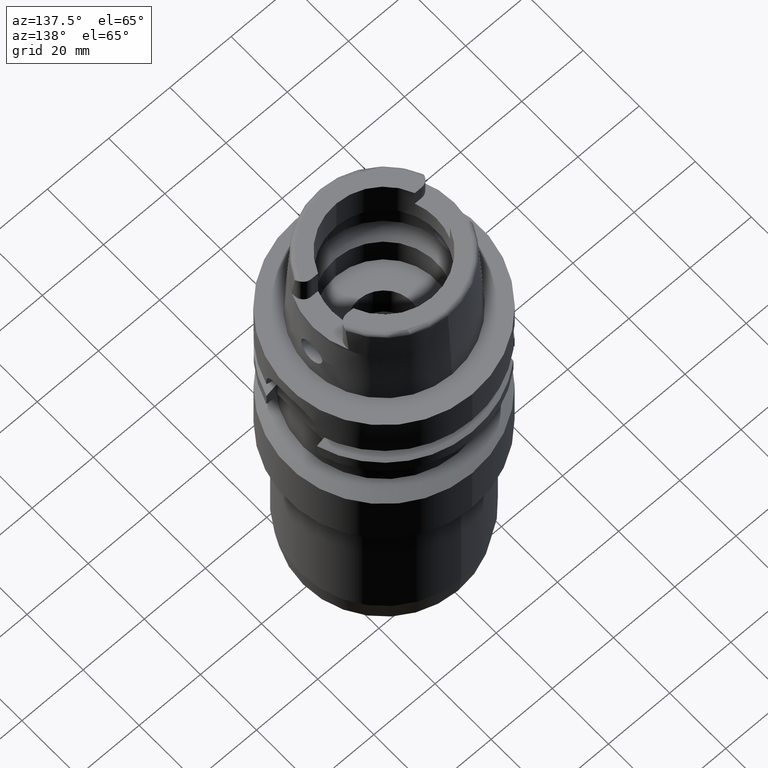
[diagram: clean part render]
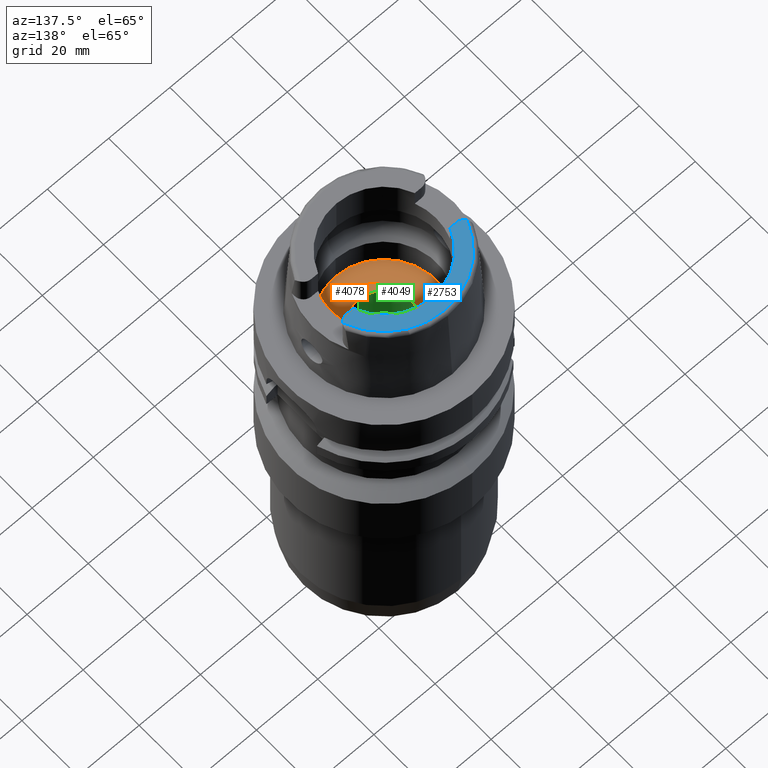
[diagram: same view with three faces highlighted in distinct colors, each labeled with its STEP entity id]
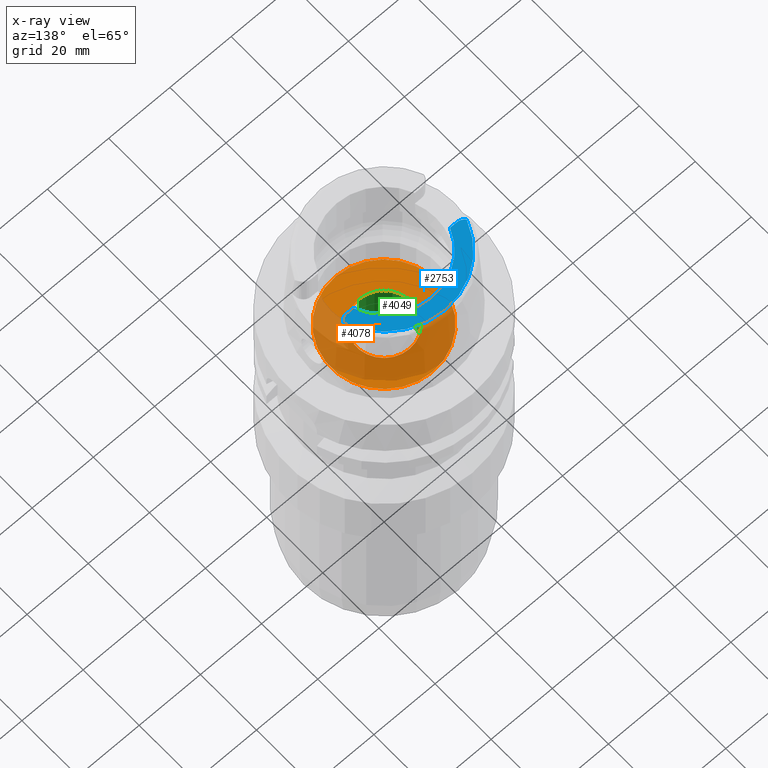
[diagram: x-ray of the same camera — body ghosted, the three highlighted faces saturated]
A machine part, auxiliary view with three faces highlighted in distinct colors.
The next image is the same camera in x-ray (body ghosted, the three faces saturated) — at least one of them is partly hidden behind the body in this view.
Their STEP definitions:

[orange] entity #4078 — the highlighted planar face has unit normal (0, 0, -1).
#1976=CARTESIAN_POINT('',(0.E0,1.709606931610E-14,-9.95E0));
#1977=DIRECTION('',(0.E0,0.E0,-1.E0));
#1978=DIRECTION('',(0.E0,-1.E0,0.E0));
#1979=AXIS2_PLACEMENT_3D('',#1976,#1977,#1978);
#1984=CARTESIAN_POINT('',(0.E0,1.709606931610E-14,-9.95E0));
#1985=DIRECTION('',(0.E0,0.E0,-1.E0));
#1986=DIRECTION('',(0.E0,1.E0,0.E0));
#1987=AXIS2_PLACEMENT_3D('',#1984,#1985,#1986);
#1992=CARTESIAN_POINT('',(0.E0,1.709606931610E-14,-9.95E0));
#1993=DIRECTION('',(0.E0,0.E0,1.E0));
#1994=DIRECTION('',(0.E0,-1.E0,0.E0));
#1995=AXIS2_PLACEMENT_3D('',#1992,#1993,#1994);
#2000=CARTESIAN_POINT('',(0.E0,1.709606931610E-14,-9.95E0));
#2001=DIRECTION('',(0.E0,0.E0,1.E0));
#2002=DIRECTION('',(0.E0,1.E0,0.E0));
#2003=AXIS2_PLACEMENT_3D('',#2000,#2001,#2002);
#2535=CARTESIAN_POINT('',(0.E0,9.E0,-9.95E0));
#2536=VERTEX_POINT('',#2535);
#2537=CARTESIAN_POINT('',(0.E0,-9.E0,-9.95E0));
#2538=VERTEX_POINT('',#2537);
#2539=CARTESIAN_POINT('',(0.E0,-1.725E1,-9.95E0));
#2540=CARTESIAN_POINT('',(0.E0,1.725E1,-9.95E0));
#2541=VERTEX_POINT('',#2539);
#2542=VERTEX_POINT('',#2540);
#4063=CARTESIAN_POINT('',(0.E0,1.102794442632E-14,-9.95E0));
#4064=DIRECTION('',(0.E0,0.E0,-1.E0));
#4065=DIRECTION('',(0.E0,-1.E0,0.E0));
#4066=AXIS2_PLACEMENT_3D('',#4063,#4064,#4065);
#4067=PLANE('',#4066);
#4069=ORIENTED_EDGE('',*,*,#4068,.T.);
#4071=ORIENTED_EDGE('',*,*,#4070,.T.);
#4072=EDGE_LOOP('',(#4069,#4071));
#4073=FACE_OUTER_BOUND('',#4072,.F.);
#4074=ORIENTED_EDGE('',*,*,#4056,.T.);
#4075=ORIENTED_EDGE('',*,*,#4045,.T.);
#4076=EDGE_LOOP('',(#4074,#4075));
#4077=FACE_BOUND('',#4076,.F.);
#1980=CIRCLE('',#1979,1.725E1);
#1988=CIRCLE('',#1987,1.725E1);
#1996=CIRCLE('',#1995,9.E0);
#2004=CIRCLE('',#2003,9.E0);
#4045=EDGE_CURVE('',#2536,#2538,#2004,.T.);
#4056=EDGE_CURVE('',#2538,#2536,#1996,.T.);
#4068=EDGE_CURVE('',#2541,#2542,#1980,.T.);
#4070=EDGE_CURVE('',#2542,#2541,#1988,.T.);
#4078=ADVANCED_FACE('',(#4073,#4077),#4067,.F.);

[blue] entity #2753 — the highlighted planar face has unit normal (0, 0, -1).
#99=DIRECTION('',(1.E0,-8.644330667353E-14,0.E0));
#100=VECTOR('',#99,2.188509563969E0);
#101=CARTESIAN_POINT('',(1.580149043603E1,6.27E0,3.2E1));
#102=LINE('',#101,#100);
#106=CARTESIAN_POINT('',(-1.799E1,9.15E0,3.2E1));
#107=DIRECTION('',(0.E0,0.E0,-1.E0));
#108=DIRECTION('',(0.E0,-1.E0,0.E0));
#109=AXIS2_PLACEMENT_3D('',#106,#107,#108);
#114=CARTESIAN_POINT('',(0.E0,1.601838013285E-14,3.2E1));
#115=DIRECTION('',(0.E0,0.E0,-1.E0));
#116=DIRECTION('',(-9.395199128801E-1,3.424942821446E-1,0.E0));
#117=AXIS2_PLACEMENT_3D('',#114,#115,#116);
#122=CARTESIAN_POINT('',(0.E0,1.601838013285E-14,3.2E1));
#123=DIRECTION('',(0.E0,0.E0,-1.E0));
#124=DIRECTION('',(9.289215035771E-4,9.999995685523E-1,0.E0));
#125=AXIS2_PLACEMENT_3D('',#122,#123,#124);
#130=CARTESIAN_POINT('',(1.799E1,9.15E0,3.2E1));
#131=DIRECTION('',(0.E0,0.E0,-1.E0));
#132=DIRECTION('',(7.912216523764E-1,-6.115294733787E-1,0.E0));
#133=AXIS2_PLACEMENT_3D('',#130,#131,#132);
#138=CARTESIAN_POINT('',(0.E0,1.709606931610E-14,3.2E1));
#139=DIRECTION('',(0.E0,0.E0,1.E0));
#140=DIRECTION('',(9.294994374136E-1,3.688235294118E-1,0.E0));
#141=AXIS2_PLACEMENT_3D('',#138,#139,#140);
#146=CARTESIAN_POINT('',(0.E0,1.709606931610E-14,3.2E1));
#147=DIRECTION('',(0.E0,0.E0,1.E0));
#148=DIRECTION('',(0.E0,1.E0,0.E0));
#149=AXIS2_PLACEMENT_3D('',#146,#147,#148);
#154=DIRECTION('',(1.E0,8.684914379407E-14,0.E0));
#155=VECTOR('',#154,2.188509563969E0);
#156=CARTESIAN_POINT('',(-1.799E1,6.27E0,3.2E1));
#157=LINE('',#156,#155);
#2337=CARTESIAN_POINT('',(0.E0,1.7E1,3.2E1));
#2338=VERTEX_POINT('',#2337);
#2339=CARTESIAN_POINT('',(1.580149043603E1,6.27E0,3.2E1));
#2340=VERTEX_POINT('',#2339);
#2353=CARTESIAN_POINT('',(1.799E1,6.27E0,3.2E1));
#2354=VERTEX_POINT('',#2353);
#2355=CARTESIAN_POINT('',(-1.799E1,6.27E0,3.2E1));
#2356=CARTESIAN_POINT('',(-1.580149043603E1,6.27E0,3.2E1));
#2357=VERTEX_POINT('',#2355);
#2358=VERTEX_POINT('',#2356);
#2359=CARTESIAN_POINT('',(-2.026871835884E1,7.388795116670E0,3.2E1));
#2360=VERTEX_POINT('',#2359);
#2361=CARTESIAN_POINT('',(2.004007373911E-2,2.157347527826E1,3.2E1));
#2362=CARTESIAN_POINT('',(2.026871835884E1,7.388795116669E0,3.2E1));
#2363=VERTEX_POINT('',#2361);
#2364=VERTEX_POINT('',#2362);
#2732=CARTESIAN_POINT('',(0.E0,1.616533774875E-14,3.2E1));
#2733=DIRECTION('',(0.E0,0.E0,-1.E0));
#2734=DIRECTION('',(0.E0,-1.E0,0.E0));
#2735=AXIS2_PLACEMENT_3D('',#2732,#2733,#2734);
#2736=PLANE('',#2735);
#2738=ORIENTED_EDGE('',*,*,#2737,.F.);
#2740=ORIENTED_EDGE('',*,*,#2739,.T.);
#2742=ORIENTED_EDGE('',*,*,#2741,.T.);
#2744=ORIENTED_EDGE('',*,*,#2743,.T.);
#2746=ORIENTED_EDGE('',*,*,#2745,.T.);
#2747=ORIENTED_EDGE('',*,*,#2724,.F.);
#2748=ORIENTED_EDGE('',*,*,#2688,.T.);
#2750=ORIENTED_EDGE('',*,*,#2749,.T.);
#2751=EDGE_LOOP('',(#2738,#2740,#2742,#2744,#2746,#2747,#2748,#2750));
#2752=FACE_OUTER_BOUND('',#2751,.F.);
#110=CIRCLE('',#109,2.88E0);
#118=CIRCLE('',#117,2.157348458609E1);
#126=CIRCLE('',#125,2.157348458609E1);
#134=CIRCLE('',#133,2.88E0);
#142=CIRCLE('',#141,1.7E1);
#150=CIRCLE('',#149,1.7E1);
#2688=EDGE_CURVE('',#2340,#2338,#142,.T.);
#2724=EDGE_CURVE('',#2340,#2354,#102,.T.);
#2737=EDGE_CURVE('',#2357,#2358,#157,.T.);
#2739=EDGE_CURVE('',#2357,#2360,#110,.T.);
#2741=EDGE_CURVE('',#2360,#2363,#118,.T.);
#2743=EDGE_CURVE('',#2363,#2364,#126,.T.);
#2745=EDGE_CURVE('',#2364,#2354,#134,.T.);
#2749=EDGE_CURVE('',#2338,#2358,#150,.T.);
#2753=ADVANCED_FACE('',(#2752),#2736,.F.);

[green] entity #4049 — the highlighted cylindrical surface (partial cylindrical patch) has radius 9 mm, axis along (0, 0, -1).
#1930=CARTESIAN_POINT('',(0.E0,1.709606931610E-14,-2.195E1));
#1931=DIRECTION('',(0.E0,0.E0,-1.E0));
#1932=DIRECTION('',(0.E0,-1.E0,0.E0));
#1933=AXIS2_PLACEMENT_3D('',#1930,#1931,#1932);
#1962=DIRECTION('',(0.E0,0.E0,1.E0));
#1963=VECTOR('',#1962,1.2E1);
#1964=CARTESIAN_POINT('',(0.E0,-9.E0,-2.195E1));
#1965=LINE('',#1964,#1963);
#1969=DIRECTION('',(0.E0,0.E0,1.E0));
#1970=VECTOR('',#1969,1.2E1);
#1971=CARTESIAN_POINT('',(0.E0,9.E0,-2.195E1));
#1972=LINE('',#1971,#1970);
#2000=CARTESIAN_POINT('',(0.E0,1.709606931610E-14,-9.95E0));
#2001=DIRECTION('',(0.E0,0.E0,1.E0));
#2002=DIRECTION('',(0.E0,1.E0,0.E0));
#2003=AXIS2_PLACEMENT_3D('',#2000,#2001,#2002);
#2531=CARTESIAN_POINT('',(0.E0,-9.E0,-2.195E1));
#2532=CARTESIAN_POINT('',(0.E0,9.E0,-2.195E1));
#2533=VERTEX_POINT('',#2531);
#2534=VERTEX_POINT('',#2532);
#2535=CARTESIAN_POINT('',(0.E0,9.E0,-9.95E0));
#2536=VERTEX_POINT('',#2535);
#2537=CARTESIAN_POINT('',(0.E0,-9.E0,-9.95E0));
#2538=VERTEX_POINT('',#2537);
#4035=CARTESIAN_POINT('',(0.E0,1.709606931610E-14,3.96E1));
#4036=DIRECTION('',(0.E0,0.E0,-1.E0));
#4037=DIRECTION('',(0.E0,-1.E0,0.E0));
#4038=AXIS2_PLACEMENT_3D('',#4035,#4036,#4037);
#4039=CYLINDRICAL_SURFACE('',#4038,9.E0);
#4041=ORIENTED_EDGE('',*,*,#4040,.F.);
#4042=ORIENTED_EDGE('',*,*,#4024,.F.);
#4044=ORIENTED_EDGE('',*,*,#4043,.T.);
#4046=ORIENTED_EDGE('',*,*,#4045,.F.);
#4047=EDGE_LOOP('',(#4041,#4042,#4044,#4046));
#4048=FACE_OUTER_BOUND('',#4047,.F.);
#1934=CIRCLE('',#1933,9.E0);
#2004=CIRCLE('',#2003,9.E0);
#4024=EDGE_CURVE('',#2533,#2534,#1934,.T.);
#4040=EDGE_CURVE('',#2534,#2536,#1972,.T.);
#4043=EDGE_CURVE('',#2533,#2538,#1965,.T.);
#4045=EDGE_CURVE('',#2536,#2538,#2004,.T.);
#4049=ADVANCED_FACE('',(#4048),#4039,.F.);